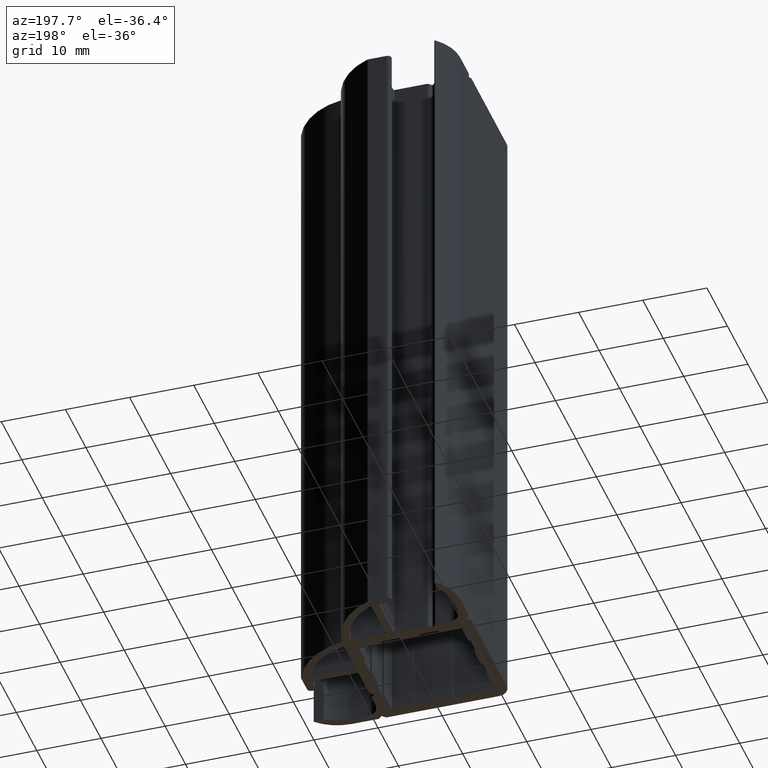
[diagram: clean part render]
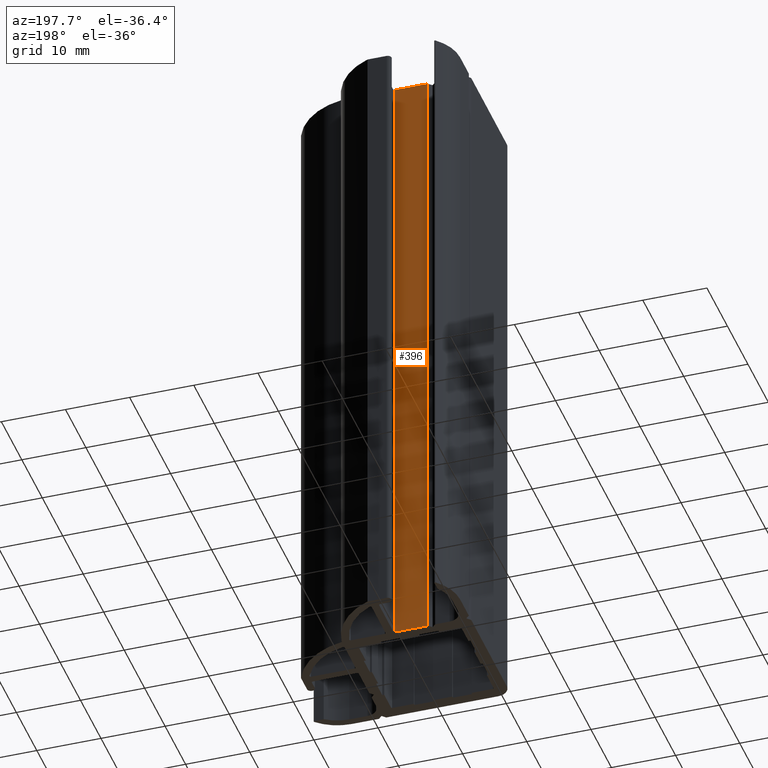
[diagram: same view with one face highlighted and labeled with its STEP entity id]
A machine part, auxiliary view. The second image highlights one B-rep face of the part: STEP entity #396.
In plain terms, the highlighted planar face has unit normal (0, 1, 0).
Its self-contained STEP definition (entity closure, byte-faithful):
#338=CARTESIAN_POINT('',(0.985281876111003,20.0,0.0));
#339=VERTEX_POINT('',#338);
#347=CARTESIAN_POINT('',(0.985281876111003,20.0,100.0));
#348=VERTEX_POINT('',#347);
#349=CARTESIAN_POINT('',(0.985281876111003,20.0,0.0));
#350=DIRECTION('',(0.0,0.0,1.0));
#351=VECTOR('',#350,100.0);
#352=LINE('',#349,#351);
#353=EDGE_CURVE('',#339,#348,#352,.T.);
#366=CARTESIAN_POINT('',(0.985281876111003,20.0,0.0));
#367=DIRECTION('',(0.0,1.0,0.0));
#368=DIRECTION('',(-1.0,0.0,0.0));
#369=AXIS2_PLACEMENT_3D('',#366,#367,#368);
#370=PLANE('',#369);
#371=CARTESIAN_POINT('',(-4.151471862576955,20.0,0.0));
#372=VERTEX_POINT('',#371);
#373=CARTESIAN_POINT('',(0.985281876111003,20.0,0.0));
#374=DIRECTION('',(-1.0,0.0,0.0));
#375=VECTOR('',#374,5.136753738687958);
#376=LINE('',#373,#375);
#377=EDGE_CURVE('',#339,#372,#376,.T.);
#378=ORIENTED_EDGE('',*,*,#377,.T.);
#379=CARTESIAN_POINT('',(-4.151471862576955,20.0,100.0));
#380=VERTEX_POINT('',#379);
#381=CARTESIAN_POINT('',(-4.151471862576955,20.0,0.0));
#382=DIRECTION('',(0.0,0.0,1.0));
#383=VECTOR('',#382,100.0);
#384=LINE('',#381,#383);
#385=EDGE_CURVE('',#372,#380,#384,.T.);
#386=ORIENTED_EDGE('',*,*,#385,.T.);
#387=CARTESIAN_POINT('',(0.985281876111003,20.0,100.0));
#388=DIRECTION('',(-1.0,0.0,0.0));
#389=VECTOR('',#388,5.136753738687958);
#390=LINE('',#387,#389);
#391=EDGE_CURVE('',#348,#380,#390,.T.);
#392=ORIENTED_EDGE('',*,*,#391,.F.);
#393=ORIENTED_EDGE('',*,*,#353,.F.);
#394=EDGE_LOOP('',(#378,#386,#392,#393));
#395=FACE_OUTER_BOUND('',#394,.T.);
#396=ADVANCED_FACE('',(#395),#370,.T.);